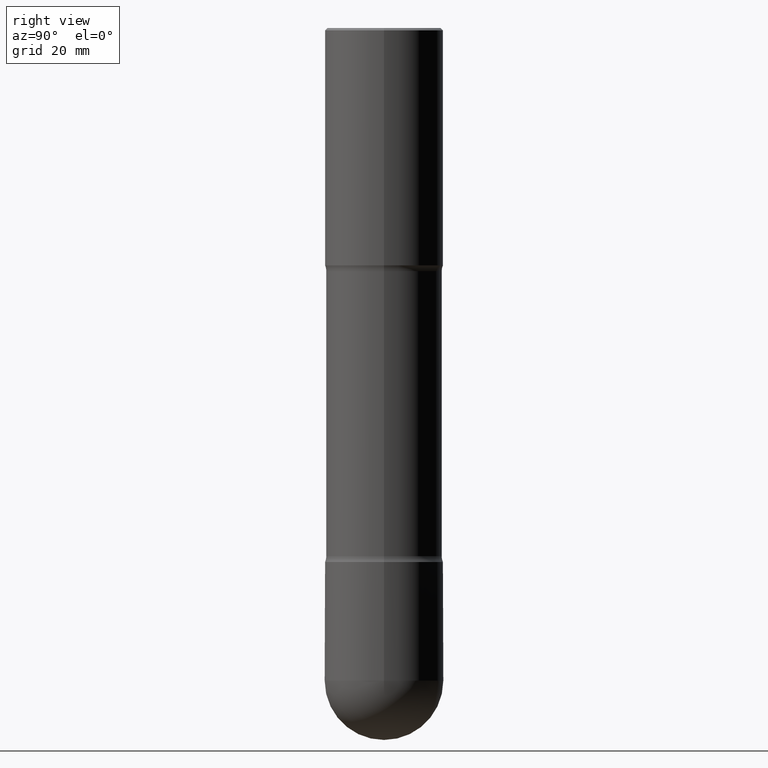
[diagram: clean part render]
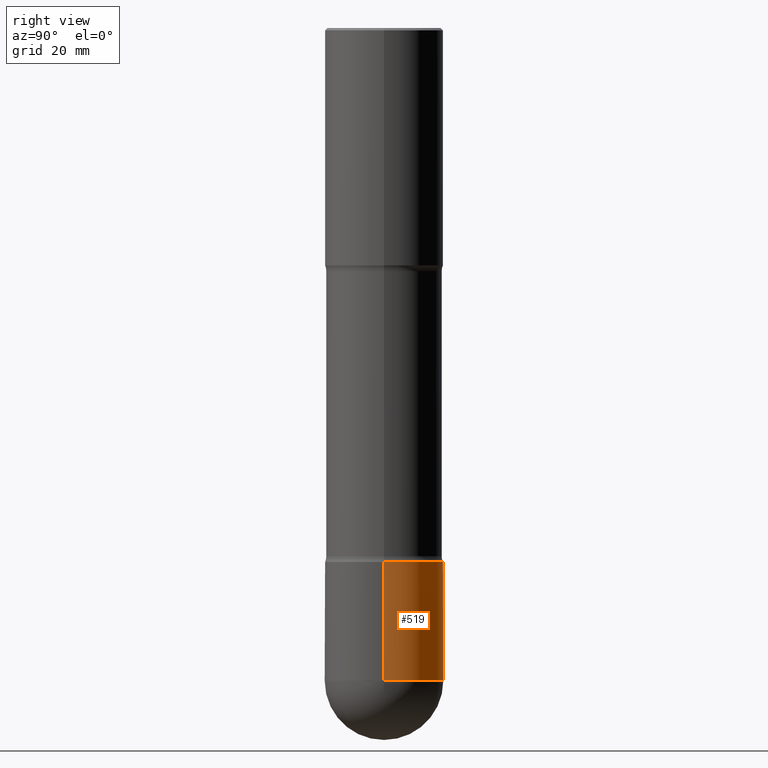
[diagram: same view with one face highlighted and labeled with its STEP entity id]
A machine part, right view. The second image highlights one B-rep face of the part: STEP entity #519.
In plain terms, the highlighted cylindrical surface (partial cylindrical patch) has radius 12.7 mm, axis along (-0, 0, 1).
Its self-contained STEP definition (entity closure, byte-faithful):
#6 = VECTOR ( 'NONE', #16, 39.37007874015748143 ) ;
#16 = DIRECTION ( 'NONE',  ( -2.445468806185136877E-29, 3.491481338843145188E-15, 1.000000000000000000 ) ) ;
#18 = ORIENTED_EDGE ( 'NONE', *, *, #224, .T. ) ;
#23 = DIRECTION ( 'NONE',  ( 1.000000000000000000, -6.982962677686266711E-15, 4.876176775795935232E-29 ) ) ;
#45 = CARTESIAN_POINT ( 'NONE',  ( -0.4999999999999991118, 3.552713678800494618E-15, -2.459467545127448407E-29 ) ) ;
#59 = EDGE_LOOP ( 'NONE', ( #271, #481, #396, #120, #18 ) ) ;
#60 = CARTESIAN_POINT ( 'NONE',  ( -0.4999999999999992228, -1.390469301541523684E-14, -4.500000000000000888 ) ) ;
#70 = EDGE_CURVE ( 'NONE', #195, #91, #272, .T. ) ;
#89 = DIRECTION ( 'NONE',  ( -2.445468806185136597E-29, 3.491481338843145583E-15, 1.000000000000000000 ) ) ;
#91 = VERTEX_POINT ( 'NONE', #521 ) ;
#108 = DIRECTION ( 'NONE',  ( -2.445468806185136597E-29, 3.491481338843145583E-15, 1.000000000000000000 ) ) ;
#120 = ORIENTED_EDGE ( 'NONE', *, *, #70, .F. ) ;
#125 = AXIS2_PLACEMENT_3D ( 'NONE', #135, #89, #23 ) ;
#127 = VERTEX_POINT ( 'NONE', #533 ) ;
#135 = CARTESIAN_POINT ( 'NONE',  ( 0.000000000000000000, 0.000000000000000000, 0.000000000000000000 ) ) ;
#171 = DIRECTION ( 'NONE',  ( -2.445468806185136597E-29, 3.491481338843145583E-15, 1.000000000000000000 ) ) ;
#176 = CARTESIAN_POINT ( 'NONE',  ( 1.345007843401825128E-28, -1.920314736363730603E-14, -5.500000000000000888 ) ) ;
#195 = VERTEX_POINT ( 'NONE', #387 ) ;
#197 = DIRECTION ( 'NONE',  ( 1.000000000000000000, -6.982962677686266711E-15, 0.000000000000000000 ) ) ;
#206 = AXIS2_PLACEMENT_3D ( 'NONE', #176, #171, #301 ) ;
#224 = EDGE_CURVE ( 'NONE', #195, #127, #466, .T. ) ;
#229 = CARTESIAN_POINT ( 'NONE',  ( 0.4999999999999991118, -3.491481338843127044E-15, 2.438088387897963412E-29 ) ) ;
#237 = DIRECTION ( 'NONE',  ( 1.000000000000000000, -6.982962677686268288E-15, 0.000000000000000000 ) ) ;
#271 = ORIENTED_EDGE ( 'NONE', *, *, #341, .T. ) ;
#272 = LINE ( 'NONE', #229, #330 ) ;
#279 = LINE ( 'NONE', #45, #6 ) ;
#284 = FACE_OUTER_BOUND ( 'NONE', #59, .T. ) ;
#301 = DIRECTION ( 'NONE',  ( 1.000000000000000000, -6.982962677686268288E-15, 0.000000000000000000 ) ) ;
#310 = CIRCLE ( 'NONE', #493, 0.4999999999999991673 ) ;
#328 = EDGE_CURVE ( 'NONE', #531, #352, #279, .T. ) ;
#330 = VECTOR ( 'NONE', #409, 39.37007874015748143 ) ;
#341 = EDGE_CURVE ( 'NONE', #127, #531, #426, .T. ) ;
#352 = VERTEX_POINT ( 'NONE', #60 ) ;
#387 = CARTESIAN_POINT ( 'NONE',  ( 0.4999999999999990563, -2.094888803305886324E-14, -5.500000000000000888 ) ) ;
#396 = ORIENTED_EDGE ( 'NONE', *, *, #433, .F. ) ;
#404 = CARTESIAN_POINT ( 'NONE',  ( 1.345007843401825128E-28, -1.920314736363730603E-14, -5.500000000000000888 ) ) ;
#409 = DIRECTION ( 'NONE',  ( -2.445468806185136877E-29, 3.491481338843145188E-15, 1.000000000000000000 ) ) ;
#418 = CYLINDRICAL_SURFACE ( 'NONE', #125, 0.4999999999999991118 ) ;
#426 = CIRCLE ( 'NONE', #435, 0.4999999999999990563 ) ;
#433 = EDGE_CURVE ( 'NONE', #91, #352, #310, .T. ) ;
#435 = AXIS2_PLACEMENT_3D ( 'NONE', #404, #448, #237 ) ;
#446 = CARTESIAN_POINT ( 'NONE',  ( -0.4999999999999990563, -1.390469301541524158E-14, -5.500000000000000888 ) ) ;
#448 = DIRECTION ( 'NONE',  ( -2.445468806185136597E-29, 3.491481338843145583E-15, 1.000000000000000000 ) ) ;
#466 = CIRCLE ( 'NONE', #206, 0.4999999999999990563 ) ;
#481 = ORIENTED_EDGE ( 'NONE', *, *, #328, .T. ) ;
#493 = AXIS2_PLACEMENT_3D ( 'NONE', #508, #108, #197 ) ;
#508 = CARTESIAN_POINT ( 'NONE',  ( 1.100460962783311693E-28, -1.571166602479415690E-14, -4.500000000000000888 ) ) ;
#519 = ADVANCED_FACE ( 'NONE', ( #284 ), #418, .T. ) ;
#521 = CARTESIAN_POINT ( 'NONE',  ( 0.4999999999999991673, -1.920314736363728394E-14, -4.500000000000000888 ) ) ;
#531 = VERTEX_POINT ( 'NONE', #446 ) ;
#533 = CARTESIAN_POINT ( 'NONE',  ( 3.491481338843259573E-15, 0.4999999999999796274, -5.500000000000002665 ) ) ;